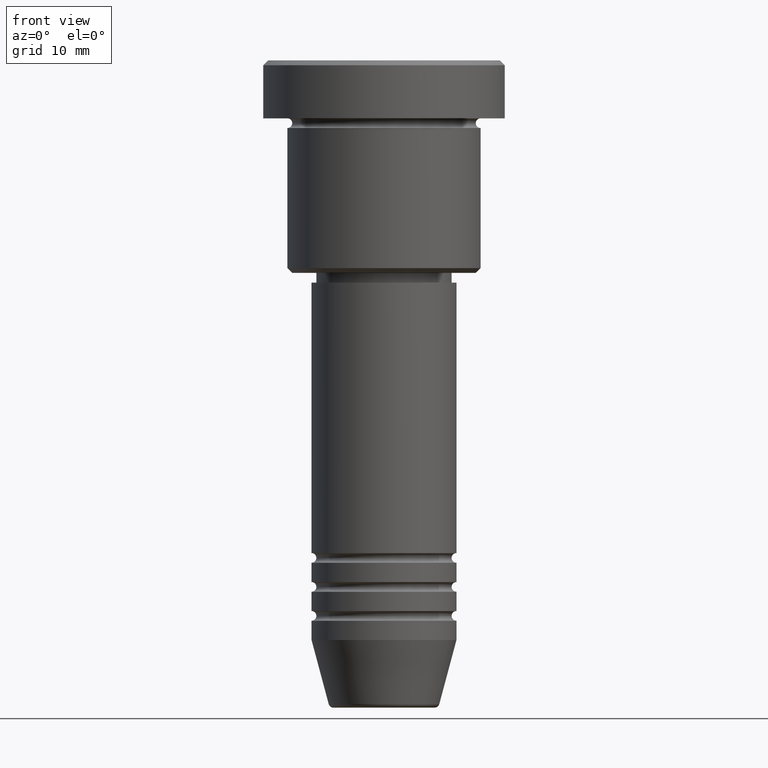
[diagram: clean part render]
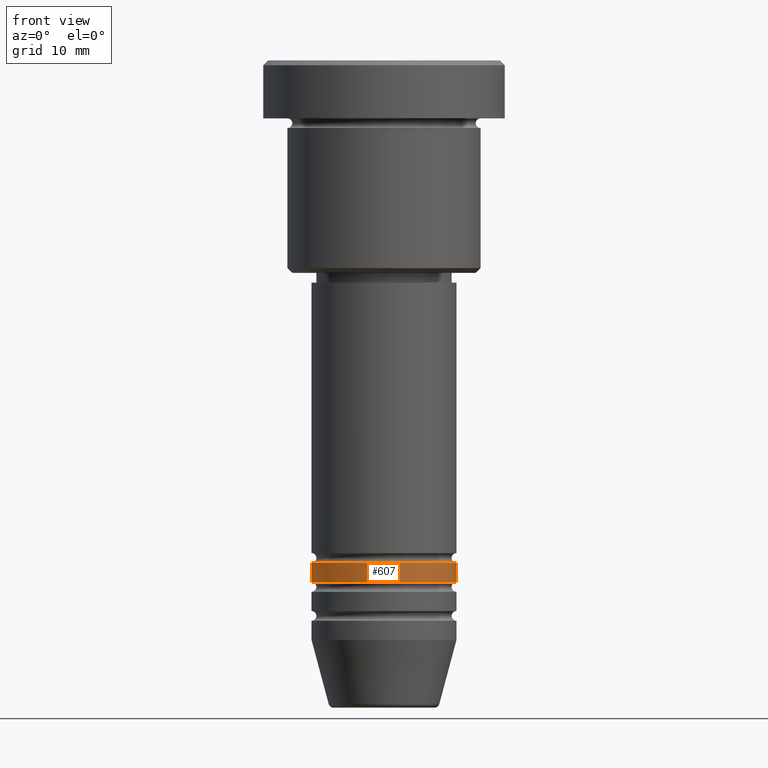
[diagram: same view with one face highlighted and labeled with its STEP entity id]
A machine part, front view. The second image highlights one B-rep face of the part: STEP entity #607.
In plain terms, the highlighted cylindrical surface (partial cylindrical patch) has radius 7.5 mm, axis along (-0, -0, 1).
Its self-contained STEP definition (entity closure, byte-faithful):
#4 = VERTEX_POINT ( 'NONE', #891 ) ;
#6 = CARTESIAN_POINT ( 'NONE',  ( 0.000000000000000000, 0.000000000000000000, 0.000000000000000000 ) ) ;
#39 = ORIENTED_EDGE ( 'NONE', *, *, #173, .F. ) ;
#57 = CARTESIAN_POINT ( 'NONE',  ( 7.500000000000000000, 0.000000000000000000, 0.000000000000000000 ) ) ;
#70 = LINE ( 'NONE', #57, #317 ) ;
#92 = ORIENTED_EDGE ( 'NONE', *, *, #471, .T. ) ;
#116 = CIRCLE ( 'NONE', #792, 7.500000000000000000 ) ;
#135 = AXIS2_PLACEMENT_3D ( 'NONE', #816, #149, #1154 ) ;
#149 = DIRECTION ( 'NONE',  ( -0.000000000000000000, -0.000000000000000000, 1.000000000000000000 ) ) ;
#150 = DIRECTION ( 'NONE',  ( -0.000000000000000000, -0.000000000000000000, 1.000000000000000000 ) ) ;
#173 = EDGE_CURVE ( 'NONE', #1158, #4, #1008, .T. ) ;
#317 = VECTOR ( 'NONE', #150, 1000.000000000000000 ) ;
#395 = ORIENTED_EDGE ( 'NONE', *, *, #964, .T. ) ;
#467 = DIRECTION ( 'NONE',  ( 1.000000000000000000, 0.000000000000000000, 0.000000000000000000 ) ) ;
#471 = EDGE_CURVE ( 'NONE', #1158, #1025, #1019, .T. ) ;
#527 = DIRECTION ( 'NONE',  ( 1.000000000000000000, 0.000000000000000000, 0.000000000000000000 ) ) ;
#586 = CARTESIAN_POINT ( 'NONE',  ( -7.500000000000000000, 9.184850993605147944E-16, -53.99999999999997868 ) ) ;
#590 = CYLINDRICAL_SURFACE ( 'NONE', #645, 7.500000000000000000 ) ;
#606 = VERTEX_POINT ( 'NONE', #756 ) ;
#607 = ADVANCED_FACE ( 'NONE', ( #1180 ), #590, .T. ) ;
#645 = AXIS2_PLACEMENT_3D ( 'NONE', #6, #751, #467 ) ;
#658 = EDGE_LOOP ( 'NONE', ( #39, #92, #395, #833 ) ) ;
#733 = EDGE_CURVE ( 'NONE', #4, #606, #116, .T. ) ;
#751 = DIRECTION ( 'NONE',  ( -0.000000000000000000, -0.000000000000000000, 1.000000000000000000 ) ) ;
#756 = CARTESIAN_POINT ( 'NONE',  ( 7.500000000000000000, 0.000000000000000000, -51.99999999999997868 ) ) ;
#783 = DIRECTION ( 'NONE',  ( -0.000000000000000000, -0.000000000000000000, 1.000000000000000000 ) ) ;
#792 = AXIS2_PLACEMENT_3D ( 'NONE', #1006, #783, #527 ) ;
#797 = CARTESIAN_POINT ( 'NONE',  ( 7.500000000000000000, 0.000000000000000000, -53.99999999999997868 ) ) ;
#816 = CARTESIAN_POINT ( 'NONE',  ( 0.000000000000000000, 0.000000000000000000, -53.99999999999997868 ) ) ;
#818 = CARTESIAN_POINT ( 'NONE',  ( -7.500000000000000000, 9.184850993605147944E-16, 0.000000000000000000 ) ) ;
#833 = ORIENTED_EDGE ( 'NONE', *, *, #733, .F. ) ;
#879 = VECTOR ( 'NONE', #904, 1000.000000000000000 ) ;
#891 = CARTESIAN_POINT ( 'NONE',  ( -7.500000000000000000, 9.184850993605147944E-16, -51.99999999999997868 ) ) ;
#904 = DIRECTION ( 'NONE',  ( -0.000000000000000000, -0.000000000000000000, 1.000000000000000000 ) ) ;
#964 = EDGE_CURVE ( 'NONE', #1025, #606, #70, .T. ) ;
#1006 = CARTESIAN_POINT ( 'NONE',  ( 0.000000000000000000, 0.000000000000000000, -51.99999999999997868 ) ) ;
#1008 = LINE ( 'NONE', #818, #879 ) ;
#1019 = CIRCLE ( 'NONE', #135, 7.500000000000000000 ) ;
#1025 = VERTEX_POINT ( 'NONE', #797 ) ;
#1154 = DIRECTION ( 'NONE',  ( 1.000000000000000000, 0.000000000000000000, 0.000000000000000000 ) ) ;
#1158 = VERTEX_POINT ( 'NONE', #586 ) ;
#1180 = FACE_OUTER_BOUND ( 'NONE', #658, .T. ) ;